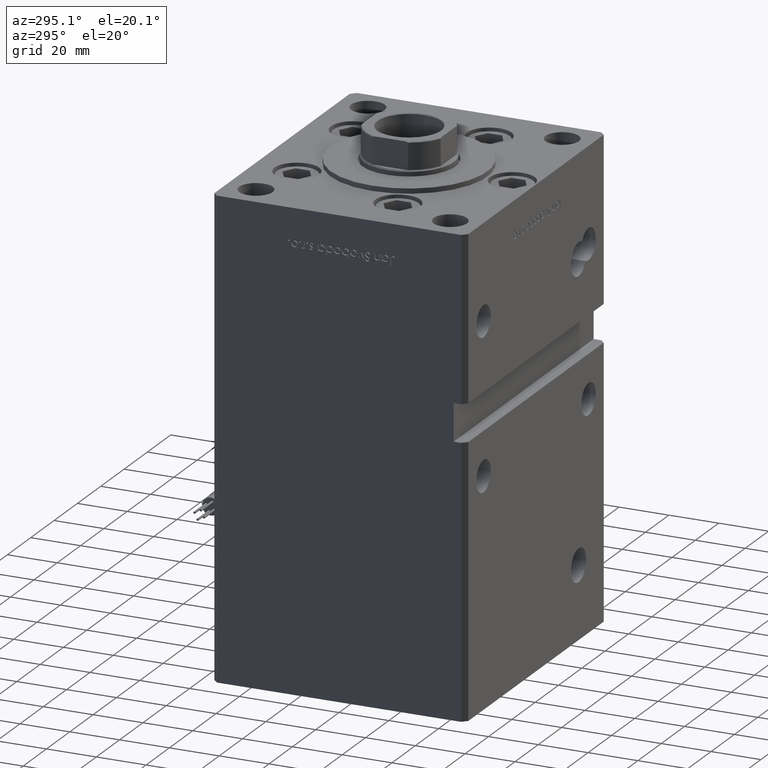
[diagram: clean part render]
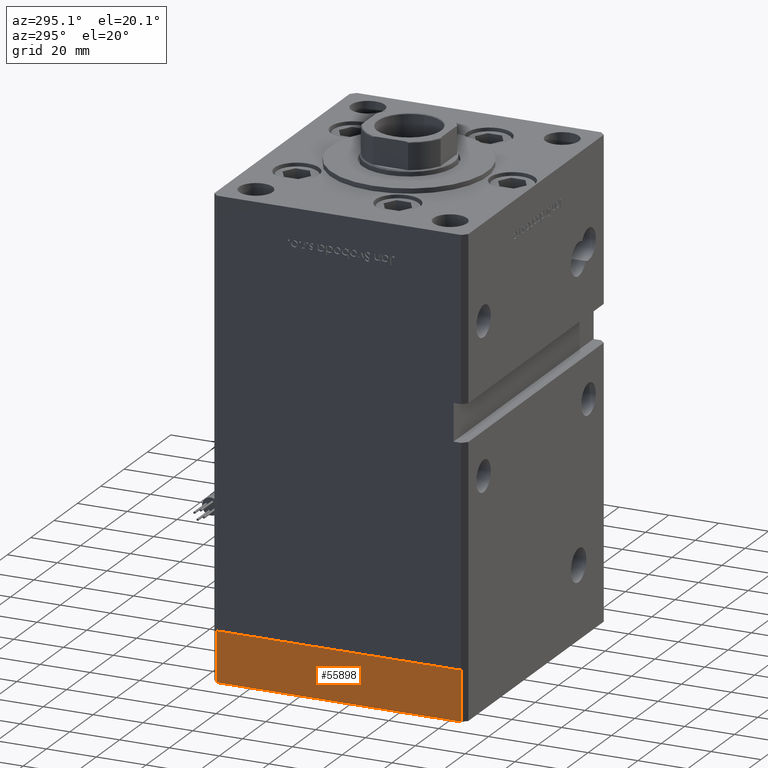
[diagram: same view with one face highlighted and labeled with its STEP entity id]
A machine part, auxiliary view. The second image highlights one B-rep face of the part: STEP entity #55898.
In plain terms, the highlighted planar face has unit normal (-1, -0, 0).
Its self-contained STEP definition (entity closure, byte-faithful):
#1703 = LINE ( 'NONE', #49484, #30594 ) ;
#1938 = VECTOR ( 'NONE', #23007, 1000.000000000000000 ) ;
#3666 = PLANE ( 'NONE',  #28208 ) ;
#4098 = ORIENTED_EDGE ( 'NONE', *, *, #38230, .T. ) ;
#5110 = EDGE_CURVE ( 'NONE', #25880, #12945, #44637, .T. ) ;
#5665 = CARTESIAN_POINT ( 'NONE',  ( 60.00000000000001421, -48.99999999999999289, 0.000000000000000000 ) ) ;
#8774 = DIRECTION ( 'NONE',  ( -7.080503983578804809E-16, 1.000000000000000000, 0.000000000000000000 ) ) ;
#9275 = ORIENTED_EDGE ( 'NONE', *, *, #26731, .F. ) ;
#9824 = ORIENTED_EDGE ( 'NONE', *, *, #51978, .T. ) ;
#9857 = VECTOR ( 'NONE', #36525, 1000.000000000000000 ) ;
#10220 = CARTESIAN_POINT ( 'NONE',  ( 60.00000000000001421, -48.99999999999999289, -20.00000000000000000 ) ) ;
#12945 = VERTEX_POINT ( 'NONE', #37420 ) ;
#13020 = EDGE_LOOP ( 'NONE', ( #16945, #9275, #4098, #9824 ) ) ;
#14066 = CARTESIAN_POINT ( 'NONE',  ( 59.99999999999994316, 49.00000000000000000, -20.00000000000000000 ) ) ;
#16741 = CARTESIAN_POINT ( 'NONE',  ( 60.00000000000001421, -48.99999999999999289, -20.00000000000000000 ) ) ;
#16945 = ORIENTED_EDGE ( 'NONE', *, *, #5110, .F. ) ;
#19055 = DIRECTION ( 'NONE',  ( 0.000000000000000000, 0.000000000000000000, 1.000000000000000000 ) ) ;
#23007 = DIRECTION ( 'NONE',  ( -7.080503983578803823E-16, 1.000000000000000000, 0.000000000000000000 ) ) ;
#25880 = VERTEX_POINT ( 'NONE', #50441 ) ;
#26731 = EDGE_CURVE ( 'NONE', #36184, #25880, #1703, .T. ) ;
#28208 = AXIS2_PLACEMENT_3D ( 'NONE', #16741, #34390, #8774 ) ;
#30594 = VECTOR ( 'NONE', #19055, 1000.000000000000000 ) ;
#34390 = DIRECTION ( 'NONE',  ( 1.000000000000000000, 7.080503983578804809E-16, -0.000000000000000000 ) ) ;
#36184 = VERTEX_POINT ( 'NONE', #43378 ) ;
#36525 = DIRECTION ( 'NONE',  ( 0.000000000000000000, 0.000000000000000000, 1.000000000000000000 ) ) ;
#37420 = CARTESIAN_POINT ( 'NONE',  ( 59.99999999999994316, 49.00000000000000000, 0.000000000000000000 ) ) ;
#38230 = EDGE_CURVE ( 'NONE', #36184, #53609, #48618, .T. ) ;
#39216 = FACE_OUTER_BOUND ( 'NONE', #13020, .T. ) ;
#40103 = DIRECTION ( 'NONE',  ( -7.080503983578803823E-16, 1.000000000000000000, 0.000000000000000000 ) ) ;
#41344 = CARTESIAN_POINT ( 'NONE',  ( 59.99999999999994316, 49.00000000000000000, -20.00000000000000000 ) ) ;
#43378 = CARTESIAN_POINT ( 'NONE',  ( 60.00000000000001421, -48.99999999999999289, -20.00000000000000000 ) ) ;
#44637 = LINE ( 'NONE', #5665, #1938 ) ;
#44991 = VECTOR ( 'NONE', #40103, 1000.000000000000000 ) ;
#48618 = LINE ( 'NONE', #10220, #44991 ) ;
#49484 = CARTESIAN_POINT ( 'NONE',  ( 60.00000000000001421, -48.99999999999999289, -20.00000000000000000 ) ) ;
#49880 = LINE ( 'NONE', #41344, #9857 ) ;
#50441 = CARTESIAN_POINT ( 'NONE',  ( 60.00000000000001421, -48.99999999999999289, 0.000000000000000000 ) ) ;
#51978 = EDGE_CURVE ( 'NONE', #53609, #12945, #49880, .T. ) ;
#53609 = VERTEX_POINT ( 'NONE', #14066 ) ;
#55898 = ADVANCED_FACE ( 'NONE', ( #39216 ), #3666, .T. ) ;